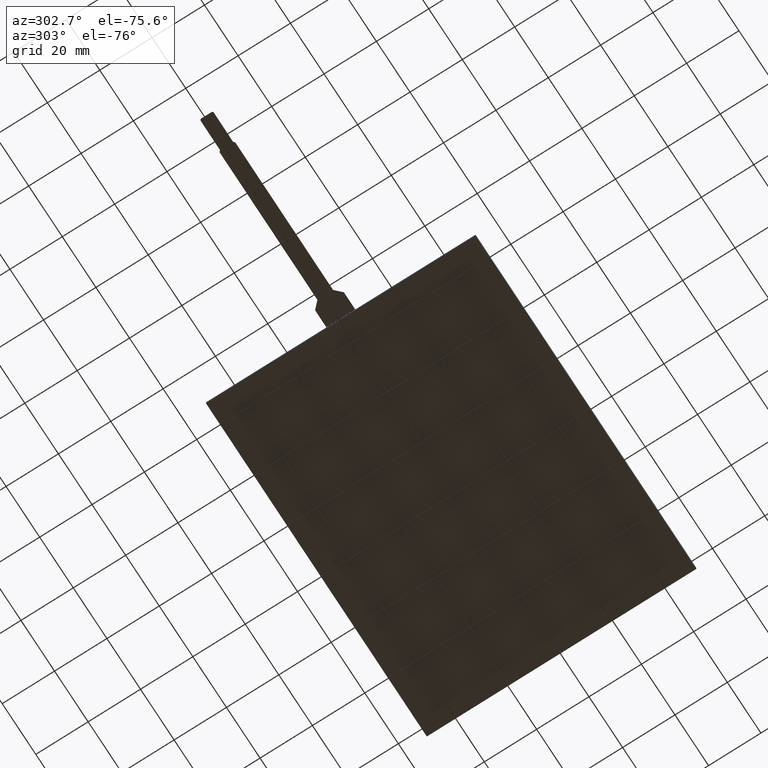
[diagram: clean part render]
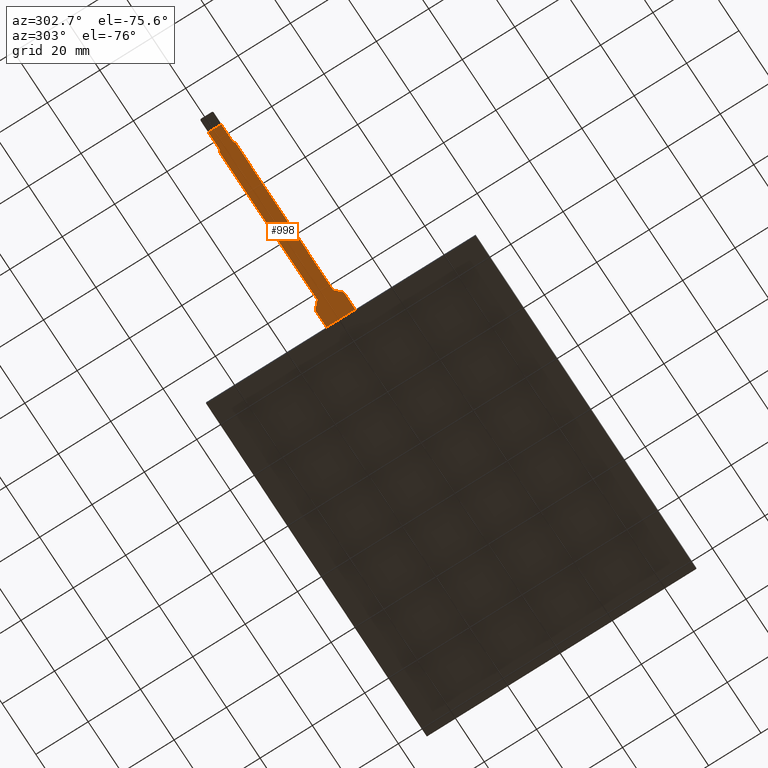
[diagram: same view with one face highlighted and labeled with its STEP entity id]
A machine part, auxiliary view. The second image highlights one B-rep face of the part: STEP entity #998.
In plain terms, the highlighted planar face has unit normal (0, 0, -1).
Its self-contained STEP definition (entity closure, byte-faithful):
#88=FACE_OUTER_BOUND('',#142,.T.);
#142=EDGE_LOOP('',(#889,#890,#891,#892,#893,#894,#895,#896,#897,#898,#899,
#900));
#229=LINE('',#1544,#355);
#231=LINE('',#1548,#357);
#242=LINE('',#1571,#368);
#245=LINE('',#1577,#371);
#248=LINE('',#1583,#374);
#251=LINE('',#1589,#377);
#254=LINE('',#1595,#380);
#257=LINE('',#1599,#383);
#259=LINE('',#1604,#385);
#262=LINE('',#1610,#388);
#265=LINE('',#1616,#391);
#268=LINE('',#1620,#394);
#355=VECTOR('',#1270,10.);
#357=VECTOR('',#1274,10.);
#368=VECTOR('',#1291,10.);
#371=VECTOR('',#1296,10.);
#374=VECTOR('',#1301,10.);
#377=VECTOR('',#1306,10.);
#380=VECTOR('',#1311,10.);
#383=VECTOR('',#1316,10.);
#385=VECTOR('',#1320,10.);
#388=VECTOR('',#1325,10.);
#391=VECTOR('',#1330,10.);
#394=VECTOR('',#1335,10.);
#461=VERTEX_POINT('',#1541);
#462=VERTEX_POINT('',#1543);
#463=VERTEX_POINT('',#1547);
#471=VERTEX_POINT('',#1568);
#472=VERTEX_POINT('',#1570);
#474=VERTEX_POINT('',#1576);
#476=VERTEX_POINT('',#1582);
#478=VERTEX_POINT('',#1588);
#480=VERTEX_POINT('',#1594);
#482=VERTEX_POINT('',#1603);
#484=VERTEX_POINT('',#1609);
#486=VERTEX_POINT('',#1615);
#585=EDGE_CURVE('',#462,#461,#229,.T.);
#587=EDGE_CURVE('',#463,#462,#231,.T.);
#598=EDGE_CURVE('',#472,#471,#242,.T.);
#601=EDGE_CURVE('',#474,#472,#245,.T.);
#604=EDGE_CURVE('',#476,#474,#248,.T.);
#607=EDGE_CURVE('',#478,#476,#251,.T.);
#610=EDGE_CURVE('',#480,#478,#254,.T.);
#613=EDGE_CURVE('',#461,#480,#257,.T.);
#615=EDGE_CURVE('',#482,#463,#259,.T.);
#618=EDGE_CURVE('',#484,#482,#262,.T.);
#621=EDGE_CURVE('',#486,#484,#265,.T.);
#624=EDGE_CURVE('',#471,#486,#268,.T.);
#889=ORIENTED_EDGE('',*,*,#585,.T.);
#890=ORIENTED_EDGE('',*,*,#613,.T.);
#891=ORIENTED_EDGE('',*,*,#610,.T.);
#892=ORIENTED_EDGE('',*,*,#607,.T.);
#893=ORIENTED_EDGE('',*,*,#604,.T.);
#894=ORIENTED_EDGE('',*,*,#601,.T.);
#895=ORIENTED_EDGE('',*,*,#598,.T.);
#896=ORIENTED_EDGE('',*,*,#624,.T.);
#897=ORIENTED_EDGE('',*,*,#621,.T.);
#898=ORIENTED_EDGE('',*,*,#618,.T.);
#899=ORIENTED_EDGE('',*,*,#615,.T.);
#900=ORIENTED_EDGE('',*,*,#587,.T.);
#946=PLANE('',#1083);
#998=ADVANCED_FACE('',(#88),#946,.T.);
#1083=AXIS2_PLACEMENT_3D('',#1622,#1338,#1339);
#1270=DIRECTION('',(0.,1.,0.));
#1274=DIRECTION('',(-1.,2.03540887847945E-15,0.));
#1291=DIRECTION('',(0.,-1.,0.));
#1296=DIRECTION('',(1.,-3.29443034013399E-16,0.));
#1301=DIRECTION('',(0.709918305516856,0.704284033250844,0.));
#1306=DIRECTION('',(1.,-3.81284093902451E-17,0.));
#1311=DIRECTION('',(0.709918305516878,0.704284033250822,0.));
#1316=DIRECTION('',(1.,-3.70074341541719E-16,0.));
#1320=DIRECTION('',(-0.704284033250845,0.709918305516855,0.));
#1325=DIRECTION('',(-1.,-3.81231931101987E-17,0.));
#1330=DIRECTION('',(-0.704284033250843,0.709918305516857,0.));
#1335=DIRECTION('',(-1.,-3.27507084734785E-16,0.));
#1338=DIRECTION('center_axis',(0.,0.,-1.));
#1339=DIRECTION('ref_axis',(-1.,0.,0.));
#1541=CARTESIAN_POINT('',(-142.7,2.50000000000002,0.1));
#1543=CARTESIAN_POINT('',(-142.7,-2.49999999999999,0.1));
#1544=CARTESIAN_POINT('',(-142.7,-1.24999999999999,0.1));
#1547=CARTESIAN_POINT('',(-135.7,-2.50000000000001,0.1));
#1548=CARTESIAN_POINT('',(-147.7,-2.49999999999998,0.1));
#1568=CARTESIAN_POINT('',(-67.7,-5.49999999999998,0.1));
#1570=CARTESIAN_POINT('',(-67.7,5.50000000000002,0.1));
#1571=CARTESIAN_POINT('',(-67.7,-5.49999999999998,0.1));
#1576=CARTESIAN_POINT('',(-74.44,5.50000000000002,0.1));
#1577=CARTESIAN_POINT('',(-67.7,5.50000000000002,0.1));
#1582=CARTESIAN_POINT('',(-76.96,3.00000000000002,0.1));
#1583=CARTESIAN_POINT('',(-74.44,5.50000000000002,0.1));
#1588=CARTESIAN_POINT('',(-135.196,3.00000000000002,0.1));
#1589=CARTESIAN_POINT('',(-76.96,3.00000000000002,0.1));
#1594=CARTESIAN_POINT('',(-135.7,2.50000000000002,0.1));
#1595=CARTESIAN_POINT('',(-135.196,3.00000000000002,0.1));
#1599=CARTESIAN_POINT('',(-135.7,2.50000000000002,0.1));
#1603=CARTESIAN_POINT('',(-135.203968253968,-2.99999999999998,0.1));
#1604=CARTESIAN_POINT('',(-135.7,-2.50000000000001,0.1));
#1609=CARTESIAN_POINT('',(-76.96,-2.99999999999998,0.1));
#1610=CARTESIAN_POINT('',(-135.203968253968,-2.99999999999998,0.1));
#1615=CARTESIAN_POINT('',(-74.4798412698413,-5.49999999999998,0.1));
#1616=CARTESIAN_POINT('',(-76.96,-2.99999999999998,0.1));
#1620=CARTESIAN_POINT('',(-74.4798412698413,-5.49999999999998,0.1));
#1622=CARTESIAN_POINT('Origin',(-107.7,1.77635683940025E-14,0.1));